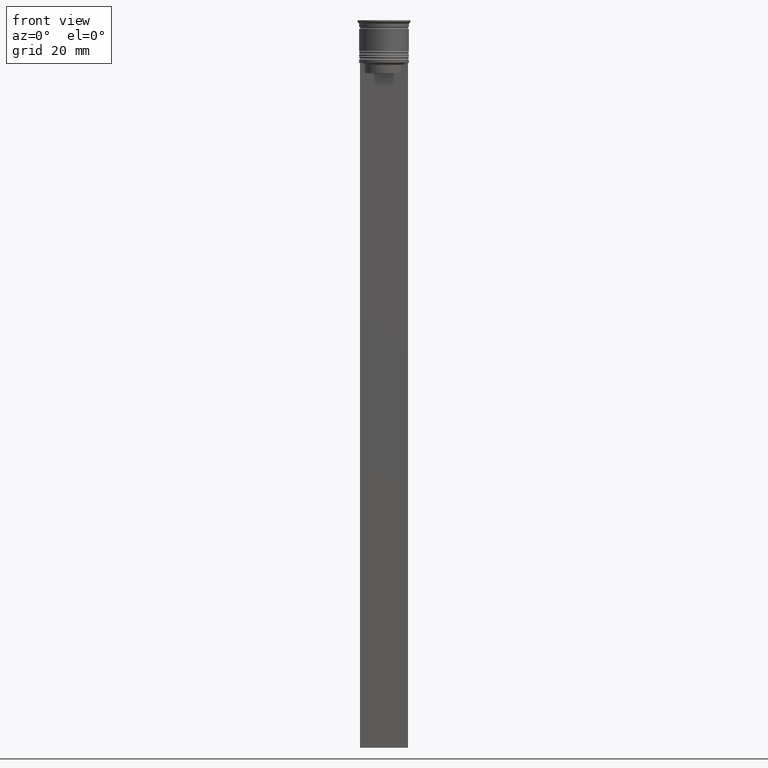
[diagram: clean part render]
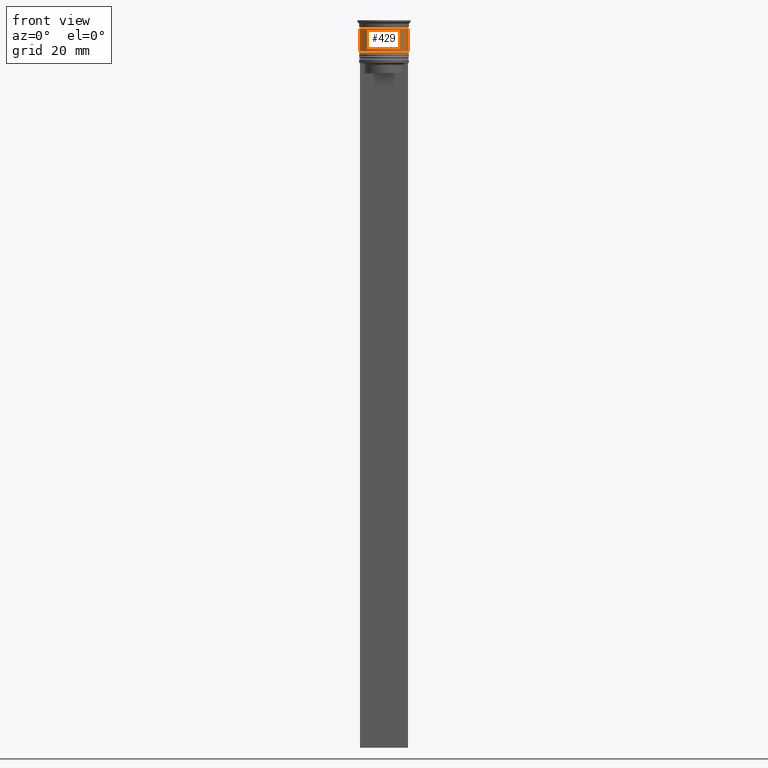
[diagram: same view with one face highlighted and labeled with its STEP entity id]
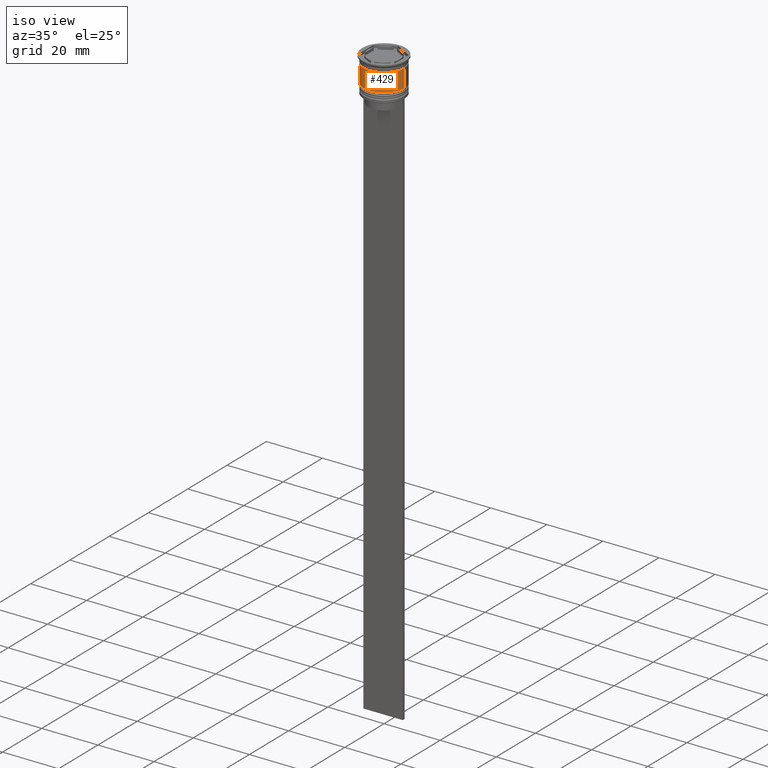
[diagram: same view with one face highlighted and labeled with its STEP entity id]
A machine part, front view. The second image highlights one B-rep face of the part: STEP entity #429.
A second angle (iso view) of the same face is appended — the face is thin or edge-on in the first view.
In plain terms, the highlighted cylindrical surface (edge-blend (fillet) strip) has radius 7.25 mm, axis along (-0, -0, 1).
Its self-contained STEP definition (entity closure, byte-faithful):
#52 = EDGE_CURVE ( 'NONE', #673, #1426, #529, .T. ) ;
#79 = CARTESIAN_POINT ( 'NONE',  ( 0.000000000000000000, 0.000000000000000000, -9.000000000000001776 ) ) ;
#218 = CARTESIAN_POINT ( 'NONE',  ( 7.249999999999999112, 0.000000000000000000, 0.000000000000000000 ) ) ;
#250 = CARTESIAN_POINT ( 'NONE',  ( -7.250000000000000888, 8.878689293818312046E-16, -9.000000000000001776 ) ) ;
#265 = DIRECTION ( 'NONE',  ( 1.000000000000000000, 0.000000000000000000, 0.000000000000000000 ) ) ;
#429 = ADVANCED_FACE ( 'NONE', ( #1431 ), #1623, .T. ) ;
#439 = DIRECTION ( 'NONE',  ( -0.000000000000000000, -0.000000000000000000, 1.000000000000000000 ) ) ;
#453 = CARTESIAN_POINT ( 'NONE',  ( 7.249999999999997335, 0.000000000000000000, -2.500000000000000444 ) ) ;
#496 = CARTESIAN_POINT ( 'NONE',  ( 0.000000000000000000, 0.000000000000000000, -2.500000000000000444 ) ) ;
#504 = CARTESIAN_POINT ( 'NONE',  ( -7.249999999999997335, 8.878689293818308102E-16, -2.500000000000000444 ) ) ;
#517 = VERTEX_POINT ( 'NONE', #250 ) ;
#529 = CIRCLE ( 'NONE', #1069, 7.249999999999997335 ) ;
#556 = DIRECTION ( 'NONE',  ( -0.000000000000000000, -0.000000000000000000, 1.000000000000000000 ) ) ;
#673 = VERTEX_POINT ( 'NONE', #504 ) ;
#743 = DIRECTION ( 'NONE',  ( -0.000000000000000000, -0.000000000000000000, 1.000000000000000000 ) ) ;
#756 = EDGE_LOOP ( 'NONE', ( #768, #1885, #905, #1277 ) ) ;
#768 = ORIENTED_EDGE ( 'NONE', *, *, #1865, .F. ) ;
#807 = AXIS2_PLACEMENT_3D ( 'NONE', #79, #439, #265 ) ;
#905 = ORIENTED_EDGE ( 'NONE', *, *, #1682, .T. ) ;
#915 = LINE ( 'NONE', #218, #1312 ) ;
#959 = CIRCLE ( 'NONE', #807, 7.250000000000000888 ) ;
#1069 = AXIS2_PLACEMENT_3D ( 'NONE', #496, #1858, #1667 ) ;
#1111 = CARTESIAN_POINT ( 'NONE',  ( 0.000000000000000000, 0.000000000000000000, 0.000000000000000000 ) ) ;
#1277 = ORIENTED_EDGE ( 'NONE', *, *, #52, .F. ) ;
#1312 = VECTOR ( 'NONE', #556, 1000.000000000000000 ) ;
#1426 = VERTEX_POINT ( 'NONE', #453 ) ;
#1431 = FACE_OUTER_BOUND ( 'NONE', #756, .T. ) ;
#1623 = CYLINDRICAL_SURFACE ( 'NONE', #2337, 7.249999999999999112 ) ;
#1667 = DIRECTION ( 'NONE',  ( 1.000000000000000000, 0.000000000000000000, 0.000000000000000000 ) ) ;
#1682 = EDGE_CURVE ( 'NONE', #2310, #1426, #915, .T. ) ;
#1721 = DIRECTION ( 'NONE',  ( -0.000000000000000000, -0.000000000000000000, 1.000000000000000000 ) ) ;
#1858 = DIRECTION ( 'NONE',  ( -0.000000000000000000, -0.000000000000000000, 1.000000000000000000 ) ) ;
#1865 = EDGE_CURVE ( 'NONE', #517, #673, #2276, .T. ) ;
#1878 = CARTESIAN_POINT ( 'NONE',  ( -7.249999999999999112, 8.878689293818310074E-16, 0.000000000000000000 ) ) ;
#1885 = ORIENTED_EDGE ( 'NONE', *, *, #1890, .T. ) ;
#1890 = EDGE_CURVE ( 'NONE', #517, #2310, #959, .T. ) ;
#1893 = VECTOR ( 'NONE', #1721, 1000.000000000000000 ) ;
#2170 = DIRECTION ( 'NONE',  ( 1.000000000000000000, 0.000000000000000000, 0.000000000000000000 ) ) ;
#2269 = CARTESIAN_POINT ( 'NONE',  ( 7.250000000000000888, 0.000000000000000000, -9.000000000000001776 ) ) ;
#2276 = LINE ( 'NONE', #1878, #1893 ) ;
#2310 = VERTEX_POINT ( 'NONE', #2269 ) ;
#2337 = AXIS2_PLACEMENT_3D ( 'NONE', #1111, #743, #2170 ) ;